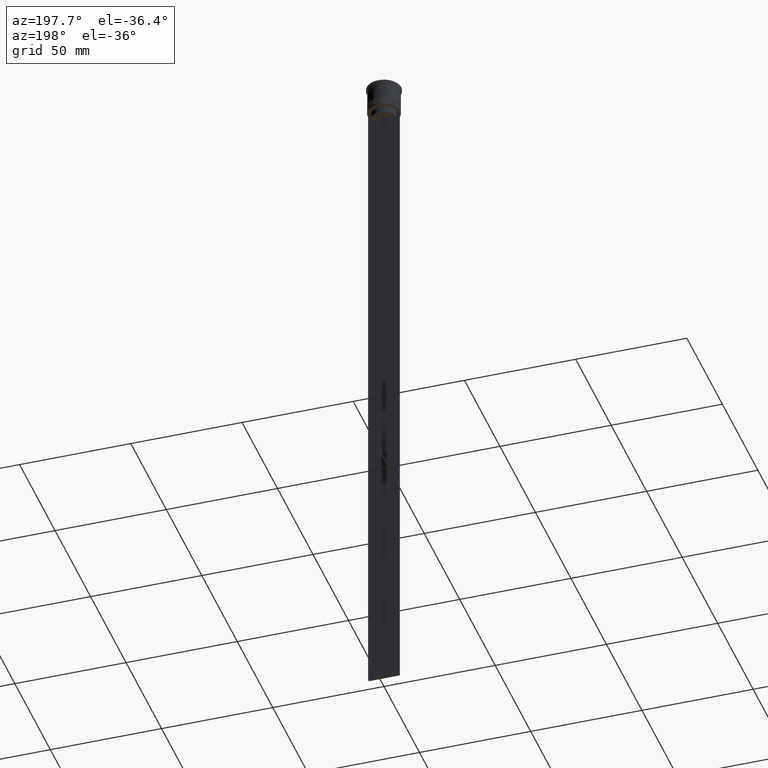
[diagram: clean part render]
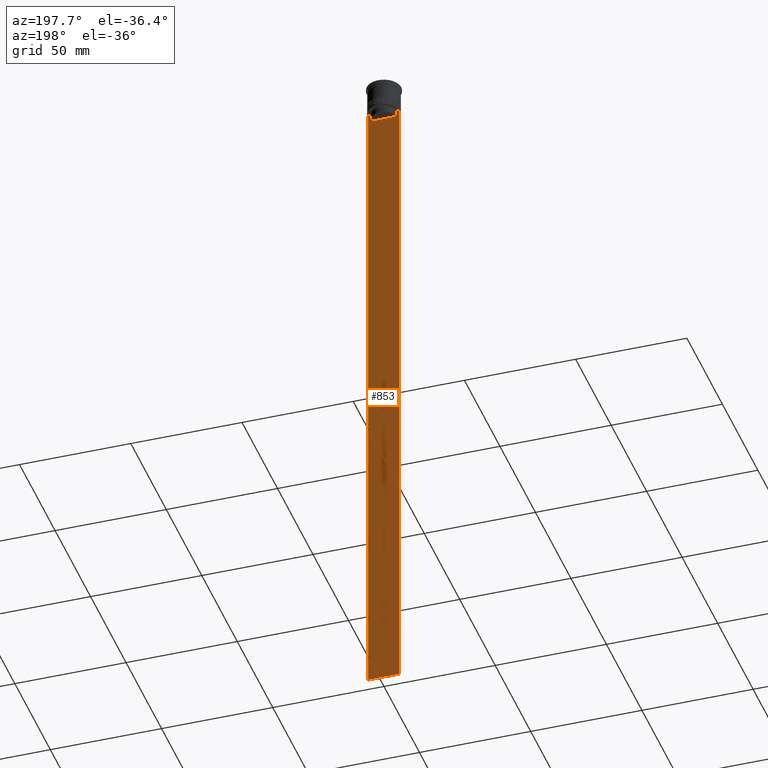
[diagram: same view with one face highlighted and labeled with its STEP entity id]
A machine part, auxiliary view. The second image highlights one B-rep face of the part: STEP entity #853.
In plain terms, the highlighted planar face has unit normal (0, -1, -0).
Its self-contained STEP definition (entity closure, byte-faithful):
#32 = LINE ( 'NONE', #1488, #827 ) ;
#45 = VECTOR ( 'NONE', #371, 1000.000000000000000 ) ;
#155 = VERTEX_POINT ( 'NONE', #652 ) ;
#164 = CARTESIAN_POINT ( 'NONE',  ( 5.627832620112292794, 0.4999999999999978351, -15.50000000000000000 ) ) ;
#175 = CARTESIAN_POINT ( 'NONE',  ( -6.129641098791995368, 0.4999999999999978351, -12.50000000000000000 ) ) ;
#205 = DIRECTION ( 'NONE',  ( 1.000000000000000000, 0.000000000000000000, 0.000000000000000000 ) ) ;
#215 = DIRECTION ( 'NONE',  ( 0.000000000000000000, 0.000000000000000000, -1.000000000000000000 ) ) ;
#225 = EDGE_CURVE ( 'NONE', #426, #2050, #708, .T. ) ;
#237 = ORIENTED_EDGE ( 'NONE', *, *, #904, .T. ) ;
#271 = AXIS2_PLACEMENT_3D ( 'NONE', #1832, #769, #215 ) ;
#338 = CARTESIAN_POINT ( 'NONE',  ( 7.000000000000012434, 0.4999999999999978351, -12.50000000000000000 ) ) ;
#351 = CARTESIAN_POINT ( 'NONE',  ( 6.129641098791995368, 0.4999999999999978351, -12.50000000000000000 ) ) ;
#371 = DIRECTION ( 'NONE',  ( -0.000000000000000000, -0.000000000000000000, 1.000000000000000000 ) ) ;
#379 = FACE_OUTER_BOUND ( 'NONE', #1626, .T. ) ;
#380 = LINE ( 'NONE', #1109, #2076 ) ;
#392 = CARTESIAN_POINT ( 'NONE',  ( -6.129641098791995368, 0.4999999999999978351, -12.50000000000000000 ) ) ;
#393 = ORIENTED_EDGE ( 'NONE', *, *, #966, .T. ) ;
#409 = DIRECTION ( 'NONE',  ( 1.000000000000000000, 0.000000000000000000, 0.000000000000000000 ) ) ;
#413 = EDGE_CURVE ( 'NONE', #1939, #1123, #1725, .T. ) ;
#426 = VERTEX_POINT ( 'NONE', #1677 ) ;
#427 = VERTEX_POINT ( 'NONE', #1309 ) ;
#455 = EDGE_CURVE ( 'NONE', #155, #1939, #620, .T. ) ;
#516 = ORIENTED_EDGE ( 'NONE', *, *, #1188, .T. ) ;
#566 = CARTESIAN_POINT ( 'NONE',  ( -5.627832620112292794, 0.4999999999999978351, -13.00000000000000000 ) ) ;
#590 = DIRECTION ( 'NONE',  ( 0.000000000000000000, 0.000000000000000000, -1.000000000000000000 ) ) ;
#603 = CARTESIAN_POINT ( 'NONE',  ( -5.627832620112292794, 0.4999999999999978351, 0.000000000000000000 ) ) ;
#620 = LINE ( 'NONE', #773, #1551 ) ;
#631 = ORIENTED_EDGE ( 'NONE', *, *, #633, .F. ) ;
#633 = EDGE_CURVE ( 'NONE', #155, #1622, #836, .T. ) ;
#652 = CARTESIAN_POINT ( 'NONE',  ( -6.999999999999987566, 0.4999999999999980571, -12.50000000000000000 ) ) ;
#663 = DIRECTION ( 'NONE',  ( 0.000000000000000000, 0.000000000000000000, -1.000000000000000000 ) ) ;
#680 = EDGE_CURVE ( 'NONE', #1763, #426, #2148, .T. ) ;
#708 = LINE ( 'NONE', #1631, #1255 ) ;
#769 = DIRECTION ( 'NONE',  ( 0.000000000000000000, -1.000000000000000000, -0.000000000000000000 ) ) ;
#773 = CARTESIAN_POINT ( 'NONE',  ( 7.000000000000012434, 0.4999999999999978351, -12.50000000000000000 ) ) ;
#827 = VECTOR ( 'NONE', #590, 1000.000000000000000 ) ;
#836 = LINE ( 'NONE', #2267, #1737 ) ;
#837 = VECTOR ( 'NONE', #1221, 1000.000000000000000 ) ;
#853 = ADVANCED_FACE ( 'NONE', ( #379 ), #1304, .F. ) ;
#861 = CARTESIAN_POINT ( 'NONE',  ( -6.999999999999987566, 0.4999999999999978351, -312.5000000000000000 ) ) ;
#904 = EDGE_CURVE ( 'NONE', #2050, #2156, #32, .T. ) ;
#966 = EDGE_CURVE ( 'NONE', #1123, #427, #2223, .T. ) ;
#976 = CARTESIAN_POINT ( 'NONE',  ( 7.000000000000012434, 0.4999999999999978351, -312.5000000000000000 ) ) ;
#990 = CARTESIAN_POINT ( 'NONE',  ( -5.627832620112292794, 0.4999999999999978351, -13.00000000000000000 ) ) ;
#1003 = EDGE_CURVE ( 'NONE', #427, #1916, #380, .T. ) ;
#1053 = ORIENTED_EDGE ( 'NONE', *, *, #413, .T. ) ;
#1109 = CARTESIAN_POINT ( 'NONE',  ( 0.000000000000000000, 0.4999999999999978351, -15.50000000000000000 ) ) ;
#1122 = CARTESIAN_POINT ( 'NONE',  ( -5.795128834036803234, 0.4999999999999978351, -12.83336016107156574 ) ) ;
#1123 = VERTEX_POINT ( 'NONE', #990 ) ;
#1188 = EDGE_CURVE ( 'NONE', #2156, #1622, #1909, .T. ) ;
#1221 = DIRECTION ( 'NONE',  ( -1.000000000000000000, 0.000000000000000000, 0.000000000000000000 ) ) ;
#1255 = VECTOR ( 'NONE', #1426, 1000.000000000000000 ) ;
#1275 = LINE ( 'NONE', #1991, #45 ) ;
#1304 = PLANE ( 'NONE',  #271 ) ;
#1309 = CARTESIAN_POINT ( 'NONE',  ( -5.627832620112292794, 0.4999999999999978351, -15.50000000000000000 ) ) ;
#1392 = CARTESIAN_POINT ( 'NONE',  ( 5.627832620112292794, 0.4999999999999978351, -13.00000000000000000 ) ) ;
#1426 = DIRECTION ( 'NONE',  ( 1.000000000000000000, 0.000000000000000000, 0.000000000000000000 ) ) ;
#1460 = CARTESIAN_POINT ( 'NONE',  ( -5.962396146966409738, 0.4999999999999978351, -12.66669130573587054 ) ) ;
#1488 = CARTESIAN_POINT ( 'NONE',  ( 7.000000000000012434, 0.4999999999999978351, 1.535668847618198329 ) ) ;
#1505 = ORIENTED_EDGE ( 'NONE', *, *, #455, .T. ) ;
#1516 = ORIENTED_EDGE ( 'NONE', *, *, #1003, .T. ) ;
#1551 = VECTOR ( 'NONE', #409, 1000.000000000000000 ) ;
#1622 = VERTEX_POINT ( 'NONE', #861 ) ;
#1626 = EDGE_LOOP ( 'NONE', ( #1505, #1053, #393, #1516, #2179, #1728, #2229, #237, #516, #631 ) ) ;
#1631 = CARTESIAN_POINT ( 'NONE',  ( 7.000000000000012434, 0.4999999999999978351, -12.50000000000000000 ) ) ;
#1677 = CARTESIAN_POINT ( 'NONE',  ( 6.129641098791995368, 0.4999999999999978351, -12.50000000000000000 ) ) ;
#1725 = B_SPLINE_CURVE_WITH_KNOTS ( 'NONE', 3,
 ( #392, #1460, #1122, #566 ),
 .UNSPECIFIED., .F., .F.,
 ( 4, 4 ),
 ( 0.01045365750109871796, 0.01116204421161398619 ),
 .UNSPECIFIED. ) ;
#1728 = ORIENTED_EDGE ( 'NONE', *, *, #680, .T. ) ;
#1737 = VECTOR ( 'NONE', #663, 1000.000000000000000 ) ;
#1743 = CARTESIAN_POINT ( 'NONE',  ( 7.000000000000012434, 0.4999999999999978351, -312.5000000000000000 ) ) ;
#1763 = VERTEX_POINT ( 'NONE', #1964 ) ;
#1764 = EDGE_CURVE ( 'NONE', #1916, #1763, #1275, .T. ) ;
#1832 = CARTESIAN_POINT ( 'NONE',  ( 7.000000000000012434, 0.4999999999999978351, 1.535668847618198329 ) ) ;
#1909 = LINE ( 'NONE', #1743, #837 ) ;
#1916 = VERTEX_POINT ( 'NONE', #164 ) ;
#1939 = VERTEX_POINT ( 'NONE', #175 ) ;
#1964 = CARTESIAN_POINT ( 'NONE',  ( 5.627832620112292794, 0.4999999999999978351, -13.00000000000000000 ) ) ;
#1973 = CARTESIAN_POINT ( 'NONE',  ( 5.962396079681187011, 0.4999999999999978351, -12.66669137279835411 ) ) ;
#1991 = CARTESIAN_POINT ( 'NONE',  ( 5.627832620112292794, 0.4999999999999978351, 0.000000000000000000 ) ) ;
#2014 = DIRECTION ( 'NONE',  ( 0.000000000000000000, 0.000000000000000000, -1.000000000000000000 ) ) ;
#2050 = VERTEX_POINT ( 'NONE', #338 ) ;
#2076 = VECTOR ( 'NONE', #205, 1000.000000000000000 ) ;
#2138 = VECTOR ( 'NONE', #2014, 1000.000000000000000 ) ;
#2148 = B_SPLINE_CURVE_WITH_KNOTS ( 'NONE', 3,
 ( #1392, #2307, #1973, #351 ),
 .UNSPECIFIED., .F., .F.,
 ( 4, 4 ),
 ( 0.02651134470867373347, 0.02721991123504337307 ),
 .UNSPECIFIED. ) ;
#2156 = VERTEX_POINT ( 'NONE', #976 ) ;
#2179 = ORIENTED_EDGE ( 'NONE', *, *, #1764, .T. ) ;
#2223 = LINE ( 'NONE', #603, #2138 ) ;
#2229 = ORIENTED_EDGE ( 'NONE', *, *, #225, .T. ) ;
#2267 = CARTESIAN_POINT ( 'NONE',  ( -6.999999999999987566, 0.4999999999999978351, 1.535668847618198329 ) ) ;
#2307 = CARTESIAN_POINT ( 'NONE',  ( 5.795128760752291441, 0.4999999999999978351, -12.83336023406855020 ) ) ;